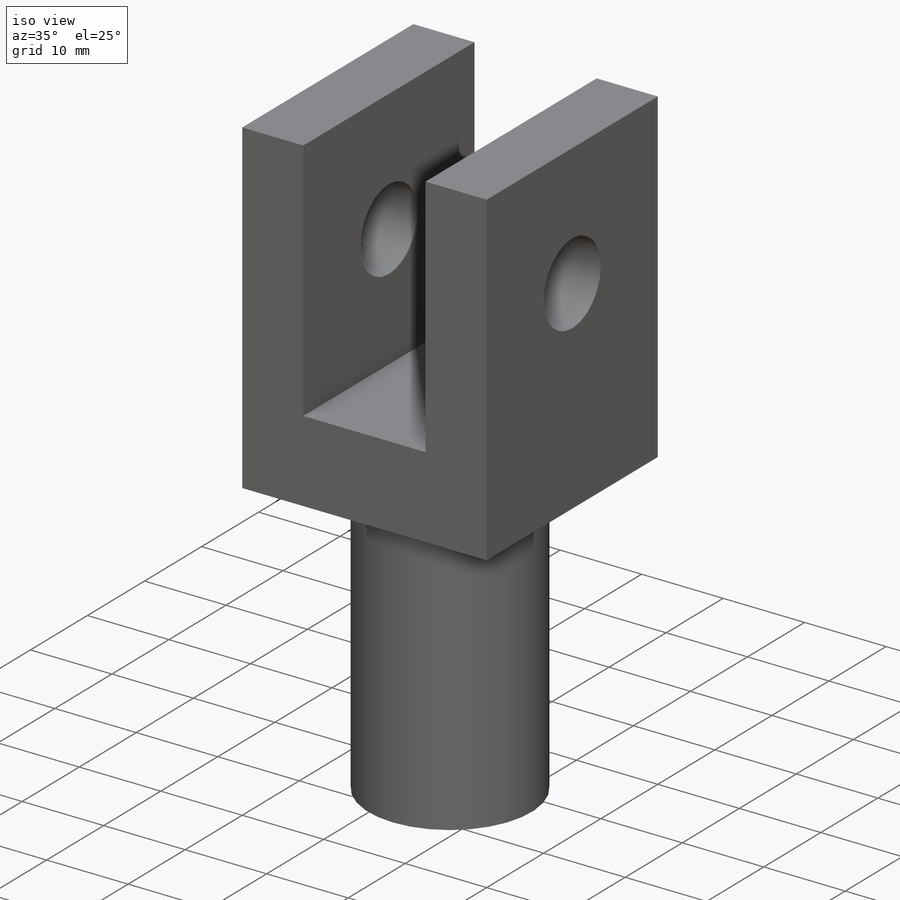
[diagram: iso view]
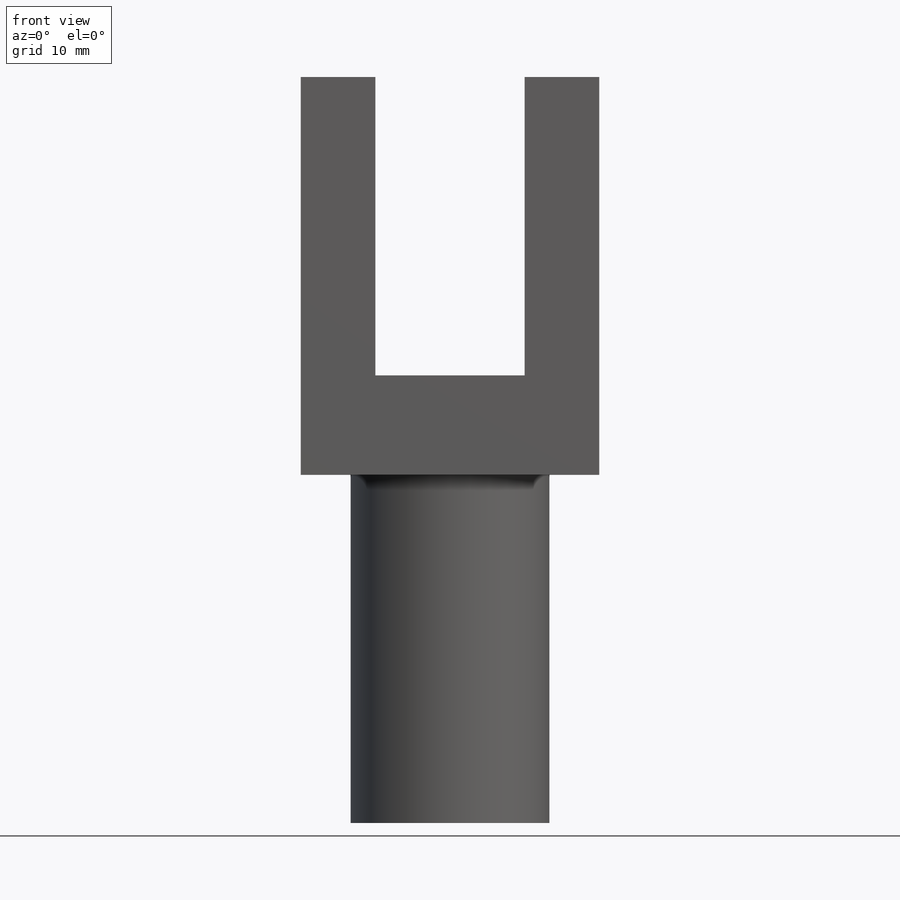
[diagram: front view]
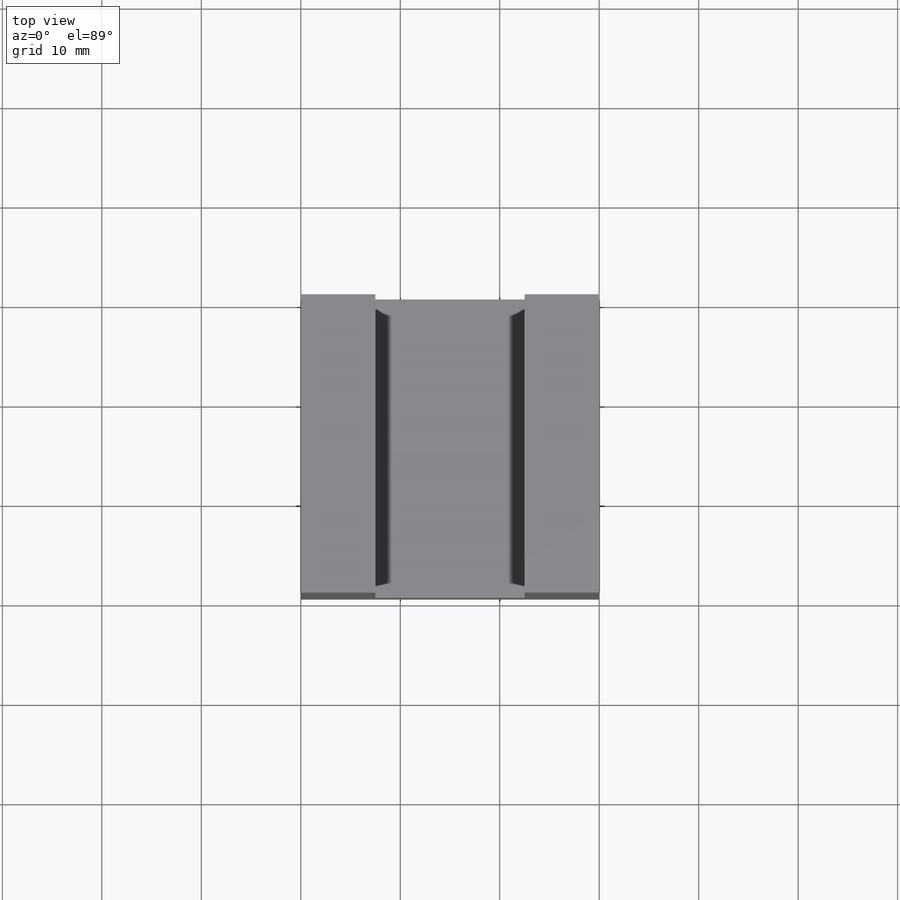
[diagram: top view]
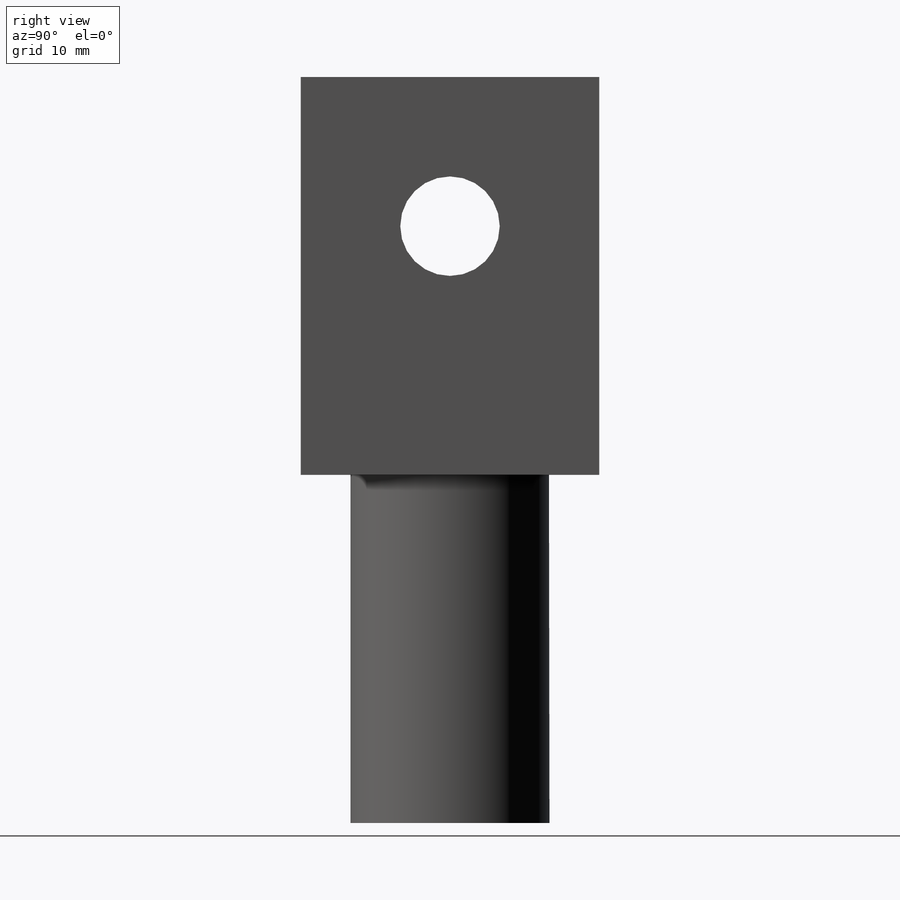
[diagram: right view]
SOLIDWORKS PART (.sldprt)
format: sldprt  version: not decoded by parser v0  size: 169,984 bytes
history: native  units: mm
features: sketch x4, plane x3, extrude x2, cut_extrude x2, material x1 (+10 scaffold rows collapsed)
feature tree (22):
  scaffold x10  (default folders/planes/origin — collapsed)
  material  "Matériau <non spécifié>"
  plane  "Plan de face"
  plane  "Plan de dessus"
  plane  "Plan de droite"
  sketch  "Esquisse1"  dims[D1=30.0mm D2=40.0mm]
  extrude  "Boss.-Extru.1"  Depth=30mm
  sketch  "Esquisse2"  dims[D1=15.0mm D2=7.5mm D3=30.0mm]
  cut_extrude  "Enlèv. mat.-Extru.1"  Depth=30mm
  sketch  "Esquisse3"  dims[c1.D1=10.0mm c1.D3=10.0mm c1.D2=15.0mm c2.D3=15.0mm]
  cut_extrude  "Enlèv. mat.-Extru.2"  Depth=50mm
  sketch  "Esquisse4"  dims[c1.D1=20.0mm c1.D2=30.0mm c2.D1=15.0mm c2.D2=15.0mm]
  extrude  "Boss.-Extru.2"  Depth=35mm
decode coverage: 8 of 8 modeling features carry decoded parameters
note: suppression state not decoded; provenance and decode notes live in map.json
